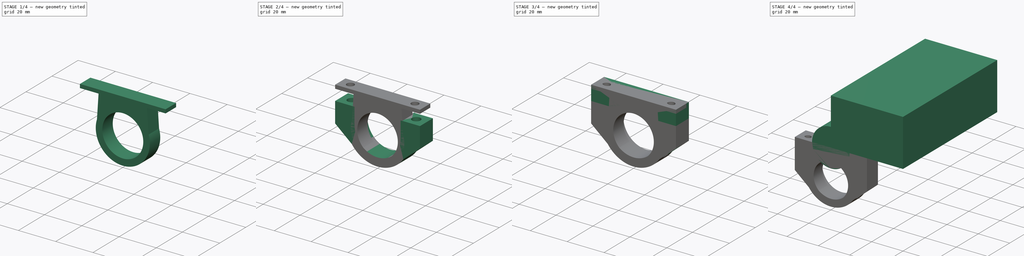
[diagram: build sequence overview — one tinted view per stage of 4, left to right]
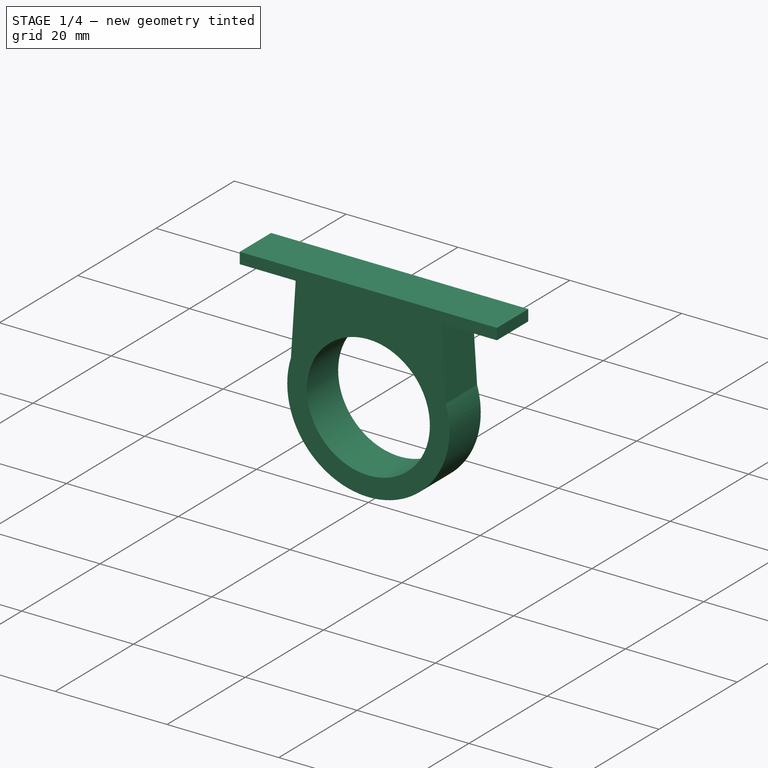
[diagram: stage 1 of 4 — iso view after this stage's code; geometry added in this stage tinted green]
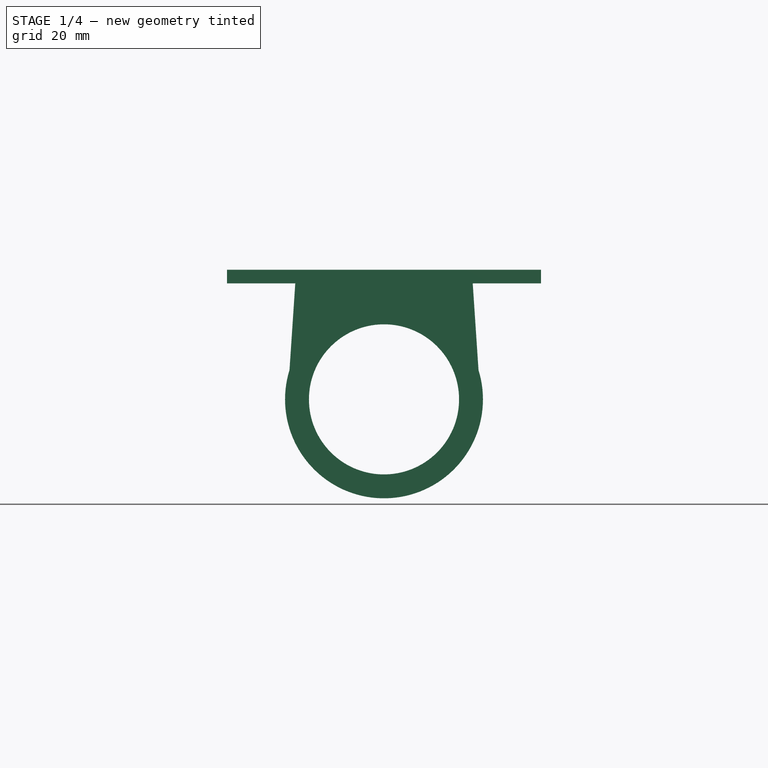
[diagram: stage 1 of 4 — front view after this stage's code; geometry added in this stage tinted green]
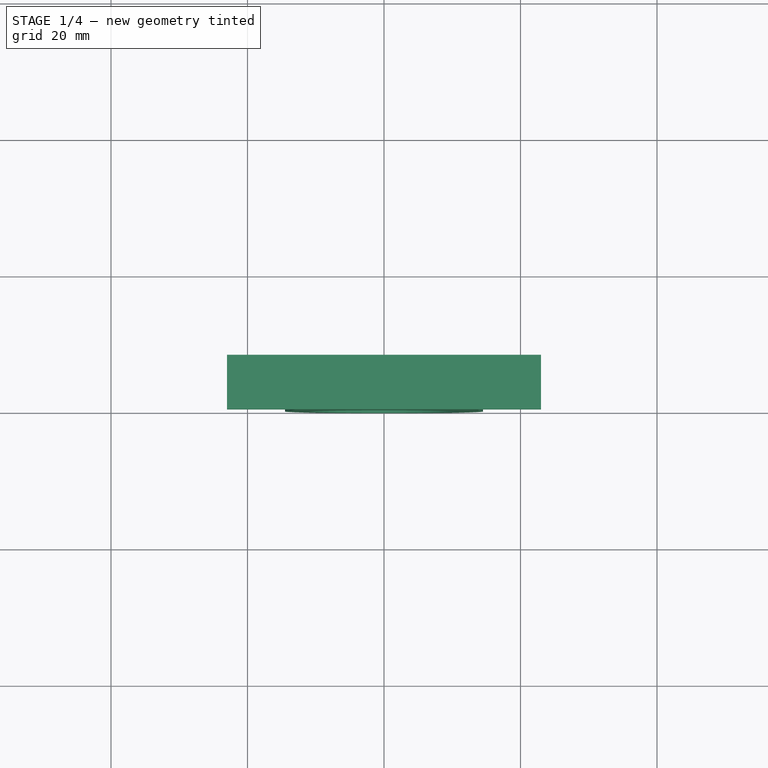
[diagram: stage 1 of 4 — top view after this stage's code; geometry added in this stage tinted green]
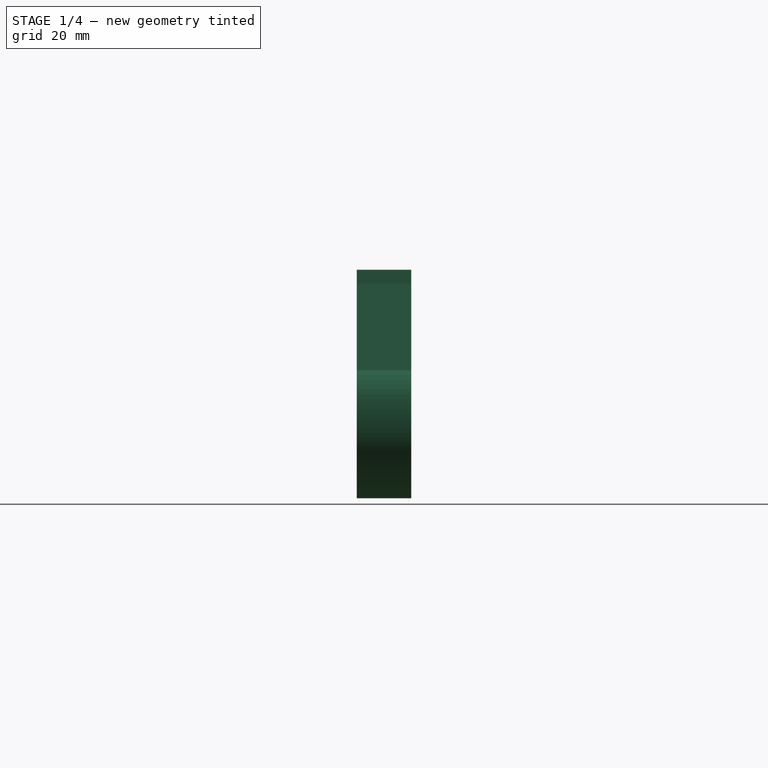
[diagram: stage 1 of 4 — right view after this stage's code; geometry added in this stage tinted green]
FCSTD DOCUMENT  (FreeCAD 0.19R)
Label: pump_mount
License: All rights reserved
LicenseURL: http://en.wikipedia.org/wiki/All_rights_reserved
objects: Sketcher::SketchObject×9, PartDesign::Body×6, PartDesign::Pocket×5, PartDesign::Pad×4, PartDesign::AdditiveCylinder×2, Spreadsheet::Sheet×2, PartDesign::AdditiveBox×1
note: 39 computed .brp shape members not serialized (recipe doc carries the construction recipe); baked Part::Feature solids carry a one-line shape summary decoded from their .brp

FEATURE [PartDesign::Body] Body003  label="mount upper"
  Group = -> [Sketch003,Pad001,Sketch004,Pocket001,Sketch005,Pocket002]
  Origin = -> Origin003
  Tip = -> Pocket002
FEATURE [Spreadsheet::Sheet] Spreadsheet  label="var"
  cells = A1=dist_pump; B1(dist_pump)=17; A2=r_pump; B2(r_pump)=12.5
FEATURE [Sketcher::SketchObject] Sketch006
  MapMode = 5
  Placement = pos=(0,0,0) rot=(1,0,0;1.5708rad)
  Support = -> [XZ_Plane004]
  expr: Constraints[6] = <<var>>.r_pump + 2
  expr: Constraints[20] = <<var>>.r_pump - 1.5
  sketch-geometry (9):
    g0: LineSegment StartX=-23 StartY=0 StartZ=0 EndX=23 EndY=0 EndZ=0
    g1: LineSegment StartX=23 StartY=0 StartZ=0 EndX=23 EndY=-2 EndZ=0
    g2: LineSegment StartX=-23 StartY=-2 StartZ=0 EndX=-23 EndY=0 EndZ=0
    g3: ArcOfCircle CenterX=2e-16 CenterY=-19 CenterZ=0 NormalX=0 NormalY=0 NormalZ=1 AngleXU=0 Radius=14.5 StartAngle=2.84103 EndAngle=6.58374
    g4: Circle CenterX=2e-16 CenterY=-19 CenterZ=0 NormalX=0 NormalY=0 NormalZ=1 AngleXU=0 Radius=11
    g5: LineSegment StartX=23 StartY=-2 StartZ=0 EndX=13 EndY=-2 EndZ=0
    g6: LineSegment StartX=13 StartY=-2 StartZ=0 EndX=13.85 EndY=-14.7072 EndZ=0
    g7: LineSegment StartX=-23 StartY=-2 StartZ=0 EndX=-13 EndY=-2 EndZ=0
    g8: LineSegment StartX=-13 StartY=-2 StartZ=0 EndX=-13.85 EndY=-14.7072 EndZ=0
  constraints (21):
    c: PointOnObject(g0,g-1)
    c: Coincident(g0,g1)
    c: Vertical(g1)
    c: Coincident(g2,g0)
    c: Coincident(g4,g3)
    c: Distance(g3,g0) = 19
    c: Radius(g3) = 14.5
    c: Symmetric(g0,g0,g-2)
    c: Distance(g0) = 46
    c: Symmetric(g1,g2,g-2)
    c: Symmetric(g3,g3,g-2)
    c: Coincident(g1,g5)
    c: Horizontal(g5)
    c: Coincident(g5,g6)
    c: Coincident(g6,g3)
    c: Coincident(g7,g2)
    c: Coincident(g8,g7)
    c: Coincident(g8,g3)
    c: Symmetric(g5,g7,g-2)
    c: Distance(g2) = 2
    c: Radius(g4) = 11
FEATURE [PartDesign::Pad] Pad002
  Length = 8
  Length2 = 100
  Placement = pos=(0,0,0) rot=(1,0,0;1.5708rad)
  Profile = -> Sketch006
  Reversed = true
  Type = 0
FEATURE [PartDesign::Body] Body004  label="tpu_mount"
  Group = -> [Sketch006,Pad002,Sketch007,Pocket003]
  Origin = -> Origin004
  Tip = -> Pocket003
FEATURE [Spreadsheet::Sheet] Spreadsheet001  label="var001"
  cells = A1=dist_pump; B1(dist_pump)=17; A2=r_pump; B2(r_pump)=12.5
FEATURE [Sketcher::SketchObject] Sketch008
  MapMode = 5
  Placement = pos=(0,0,0) rot=(1,0,0;1.5708rad)
  Support = -> [XZ_Plane004]
  expr: Constraints[6] = <<var001>>.r_pump + 2
  sketch-geometry (9):
    g0: LineSegment StartX=-23 StartY=0 StartZ=0 EndX=23 EndY=0 EndZ=0
    g1: LineSegment StartX=23 StartY=0 StartZ=0 EndX=23 EndY=-2 EndZ=0
    g2: LineSegment StartX=-23 StartY=-2 StartZ=0 EndX=-23 EndY=0 EndZ=0
    g3: ArcOfCircle CenterX=-6e-16 CenterY=-19 CenterZ=0 NormalX=0 NormalY=0 NormalZ=1 AngleXU=0 Radius=14.5 StartAngle=2.84103 EndAngle=6.58375
    g4: Circle CenterX=-6e-16 CenterY=-19 CenterZ=0 NormalX=0 NormalY=0 NormalZ=1 AngleXU=0 Radius=12.5
    g5: LineSegment StartX=23 StartY=-2 StartZ=0 EndX=13 EndY=-2 EndZ=0
    g6: LineSegment StartX=13 StartY=-2 StartZ=0 EndX=13.85 EndY=-14.7072 EndZ=0
    g7: LineSegment StartX=-23 StartY=-2 StartZ=0 EndX=-13 EndY=-2 EndZ=0
    g8: LineSegment StartX=-13 StartY=-2 StartZ=0 EndX=-13.85 EndY=-14.7072 EndZ=0
  constraints (21):
    c: PointOnObject(g0,g-1)
    c: Coincident(g0,g1)
    c: Vertical(g1)
    c: Coincident(g2,g0)
    c: Coincident(g4,g3)
    c: Distance(g3,g0) = 19
    c: Radius(g3) = 14.5
    c: Symmetric(g0,g0,g-2)
    c: Distance(g0) = 46
    c: Symmetric(g1,g2,g-2)
    c: Symmetric(g3,g3,g-2)
    c: Coincident(g1,g5)
    c: Horizontal(g5)
    c: Coincident(g5,g6)
    c: Coincident(g6,g3)
    c: Coincident(g7,g2)
    c: Coincident(g8,g7)
    c: Coincident(g8,g3)
    c: Symmetric(g5,g7,g-2)
    c: Distance(g2) = 2
    c: Radius(g4) = 12.5
FEATURE [PartDesign::Pad] Pad003
  Length = 8
  Length2 = 100
  Placement = pos=(0,0,0) rot=(1,0,0;1.5708rad)
  Profile = -> Sketch008
  Reversed = true
  Type = 0
FEATURE [Sketcher::SketchObject] Sketch009
  MapMode = 5
  Support = -> [XY_Plane005]
  sketch-geometry (2):
    g0: Circle CenterX=-17.5 CenterY=4 CenterZ=0 NormalX=0 NormalY=0 NormalZ=1 AngleXU=0 Radius=2
    g1: Circle CenterX=17.5 CenterY=4 CenterZ=0 NormalX=0 NormalY=0 NormalZ=1 AngleXU=0 Radius=2
  constraints (5):
    c: Symmetric(g1,g0,g-2)
    c: Equal(g1,g0)
    c: Radius(g0) = 2
    c: DistanceY(g-1,g1) = 4
    c: Distance(g1,g0) = 35
FEATURE [PartDesign::Pocket] Pocket004
  BaseFeature = -> Pad003
  Length = 5
  Length2 = 100
  Placement = pos=(0,0,0) rot=(1,0,0;1.5708rad)
  Profile = -> Sketch009
  Type = 1
FEATURE [PartDesign::Body] Body005  label="tpu_mount2"
  Group = -> [Sketch008,Pad003,Sketch009,Pocket004]
  Origin = -> Origin005
  Placement = pos=(0,40,0) rot=(0,0,1;0rad)
  Tip = -> Pocket004
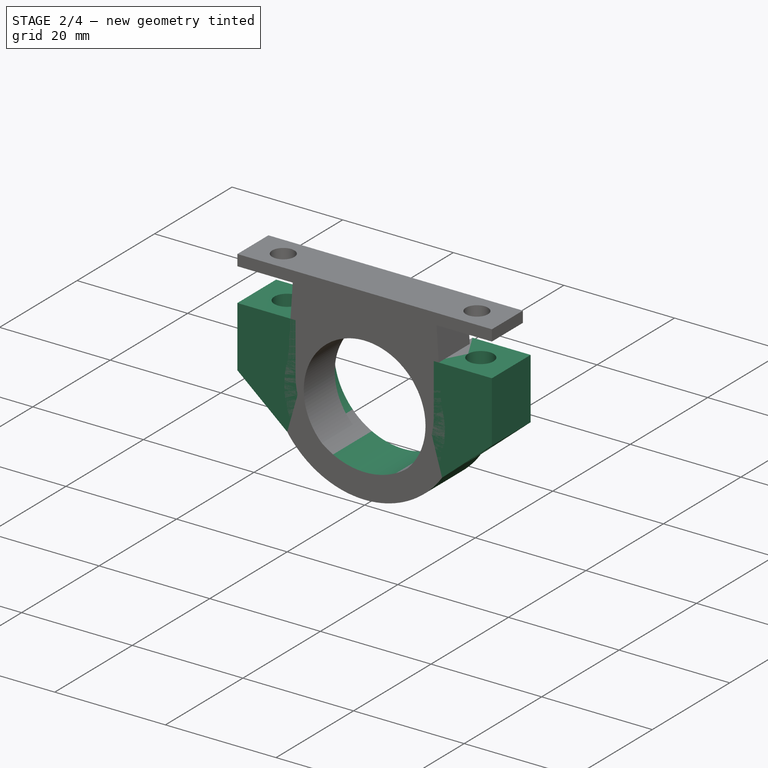
[diagram: stage 2 of 4 — iso view after this stage's code; geometry added in this stage tinted green]
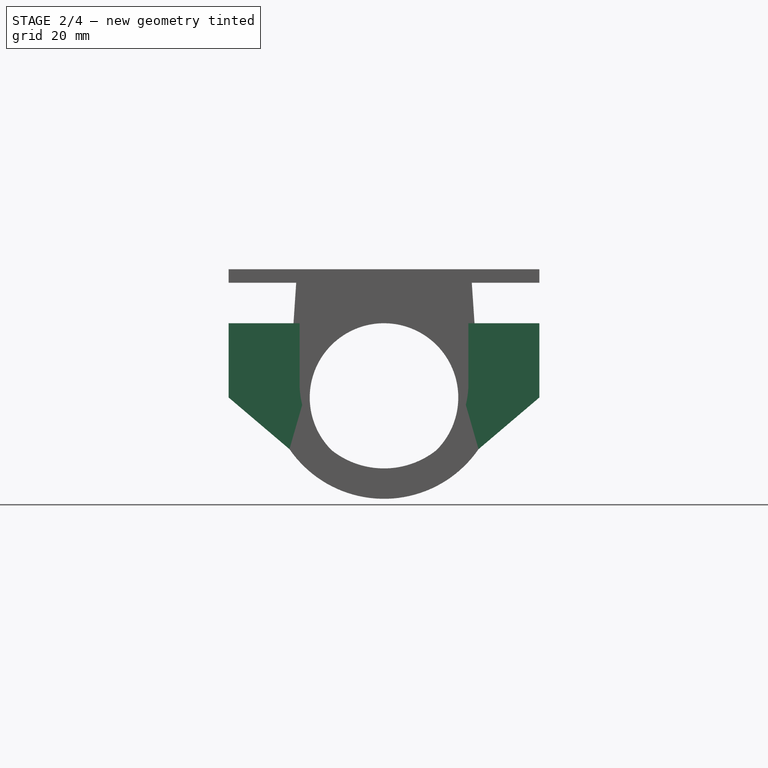
[diagram: stage 2 of 4 — front view after this stage's code; geometry added in this stage tinted green]
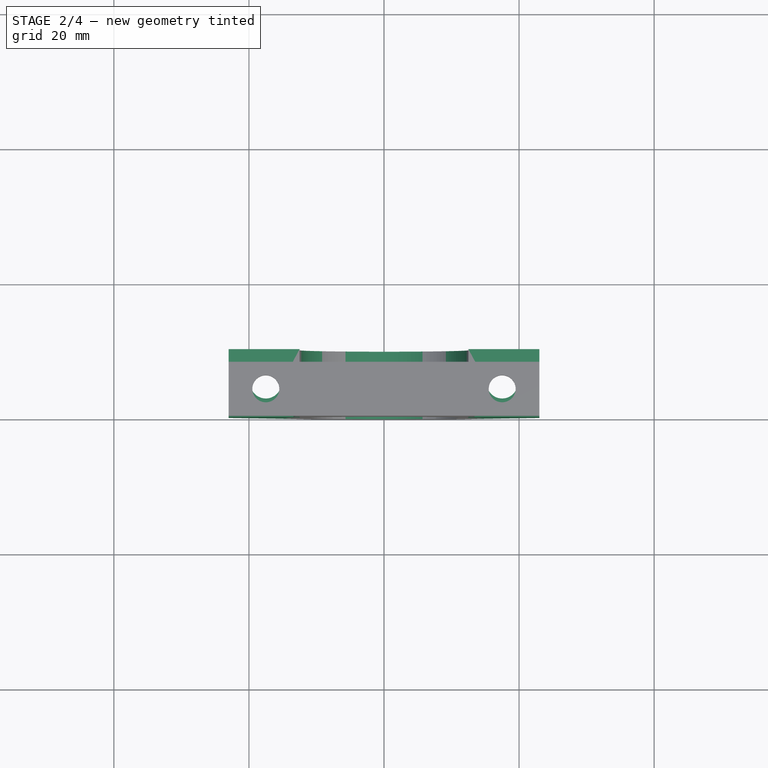
[diagram: stage 2 of 4 — top view after this stage's code; geometry added in this stage tinted green]
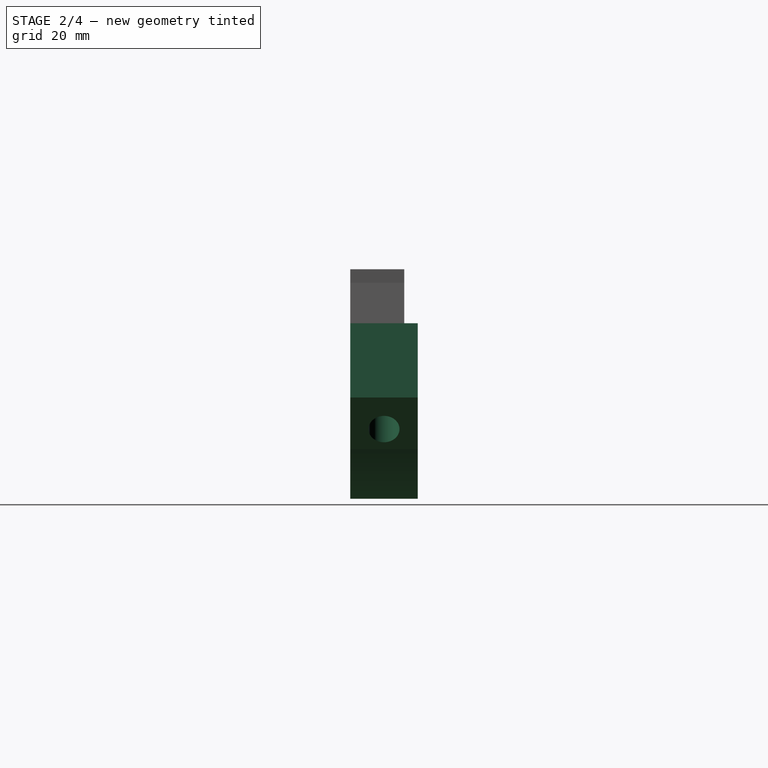
[diagram: stage 2 of 4 — right view after this stage's code; geometry added in this stage tinted green]
FEATURE [PartDesign::Body] Body001  label="mount lower"
  Group = -> [Sketch,Pad,Sketch001,Pocket]
  Origin = -> Origin001
  Tip = -> Pocket
FEATURE [Sketcher::SketchObject] Sketch003
  MapMode = 5
  Placement = pos=(0,0,0) rot=(1,0,0;1.5708rad)
  Support = -> [XZ_Plane003]
  expr: Constraints[15] = -<<var>>.dist_pump
  sketch-geometry (10):
    g0: LineSegment StartX=-23 StartY=-8 StartZ=0 EndX=-12.5 EndY=-8 EndZ=0
    g1: LineSegment StartX=-12.5 StartY=-8 StartZ=0 EndX=-12.5 EndY=-17 EndZ=0
    g2: ArcOfCircle CenterX=3e-16 CenterY=-17 CenterZ=0 NormalX=0 NormalY=0 NormalZ=1 AngleXU=0 Radius=12.5 StartAngle=3.14159 EndAngle=6.28319
    g3: LineSegment StartX=12.5 StartY=-17 StartZ=0 EndX=12.5 EndY=-8 EndZ=0
    g4: LineSegment StartX=12.5 StartY=-8 StartZ=0 EndX=23 EndY=-8 EndZ=0
    g5: LineSegment StartX=23 StartY=-8 StartZ=0 EndX=23 EndY=-19 EndZ=0
    g6: LineSegment StartX=23 StartY=-19 StartZ=0 EndX=14 EndY=-26.6437 EndZ=0
    g7: ArcOfCircle CenterX=3e-16 CenterY=-17 CenterZ=0 NormalX=0 NormalY=0 NormalZ=1 AngleXU=0 Radius=17 StartAngle=3.74478 EndAngle=5.67999
    g8: LineSegment StartX=-23 StartY=-19 StartZ=0 EndX=-23 EndY=-8 EndZ=0
    g9: LineSegment StartX=-14 StartY=-26.6437 StartZ=0 EndX=-23 EndY=-19 EndZ=0
  constraints (25):
    c: Horizontal(g0)
    c: Coincident(g0,g1)
    c: Vertical(g1)
    c: Tangent(g1,g2) = -1.5708
    c: Tangent(g2,g3) = -1.5708
    c: Coincident(g4,g5)
    c: Vertical(g5)
    c: Coincident(g8,g0)
    c: Coincident(g9,g8)
    c: Symmetric(g0,g4,g-2)
    c: Symmetric(g0,g4,g-2)
    c: Distance(g0,g4) = 46
    c: Coincident(g3,g4)
    c: Distance(g0,g3) = 25
    c: Coincident(g2,g7)
    c: DistanceY(g-1,g2) = -17
    c: DistanceY(g-1,g0) = -8
    c: Distance(g8) = 11
    c: Coincident(g5,g6)
    c: Coincident(g7,g9)
    c: Coincident(g6,g7)
    c: Symmetric(g5,g8,g-2)
    c: Radius(g7) = 17
    c: Symmetric(g6,g7,g-2)
    c: Distance(g7,g6) = 28
FEATURE [PartDesign::Pad] Pad001
  Length = 10
  Length2 = 100
  Placement = pos=(0,0,0) rot=(1,0,0;1.5708rad)
  Profile = -> Sketch003
  Reversed = true
  Type = 0
FEATURE [Sketcher::SketchObject] Sketch004
  MapMode = 5
  Support = -> [XY_Plane003]
  sketch-geometry (2):
    g0: Circle CenterX=-17.5 CenterY=5 CenterZ=0 NormalX=0 NormalY=0 NormalZ=1 AngleXU=0 Radius=2.3
    g1: Circle CenterX=17.5 CenterY=5 CenterZ=0 NormalX=0 NormalY=0 NormalZ=1 AngleXU=0 Radius=2.3
  constraints (5):
    c: Symmetric(g0,g1,g-2)
    c: Distance(g0,g1) = 35
    c: DistanceY(g-1,g0) = 5
    c: Radius(g1) = 2.3
    c: Equal(g1,g0)
FEATURE [PartDesign::Pocket] Pocket001
  BaseFeature = -> Pad001
  Length = 5
  Length2 = 100
  Placement = pos=(0,0,0) rot=(1,0,0;1.5708rad)
  Profile = -> Sketch004
  Type = 1
FEATURE [Sketcher::SketchObject] Sketch007
  MapMode = 5
  Support = -> [XY_Plane004]
  sketch-geometry (2):
    g0: Circle CenterX=-17.5 CenterY=4 CenterZ=0 NormalX=0 NormalY=0 NormalZ=1 AngleXU=0 Radius=2
    g1: Circle CenterX=17.5 CenterY=4 CenterZ=0 NormalX=0 NormalY=0 NormalZ=1 AngleXU=0 Radius=2
  constraints (5):
    c: Symmetric(g1,g0,g-2)
    c: Equal(g1,g0)
    c: Radius(g0) = 2
    c: DistanceY(g-1,g1) = 4
    c: Distance(g1,g0) = 35
FEATURE [PartDesign::Pocket] Pocket003
  BaseFeature = -> Pad002
  Length = 5
  Length2 = 100
  Placement = pos=(0,0,0) rot=(1,0,0;1.5708rad)
  Profile = -> Sketch007
  Type = 1
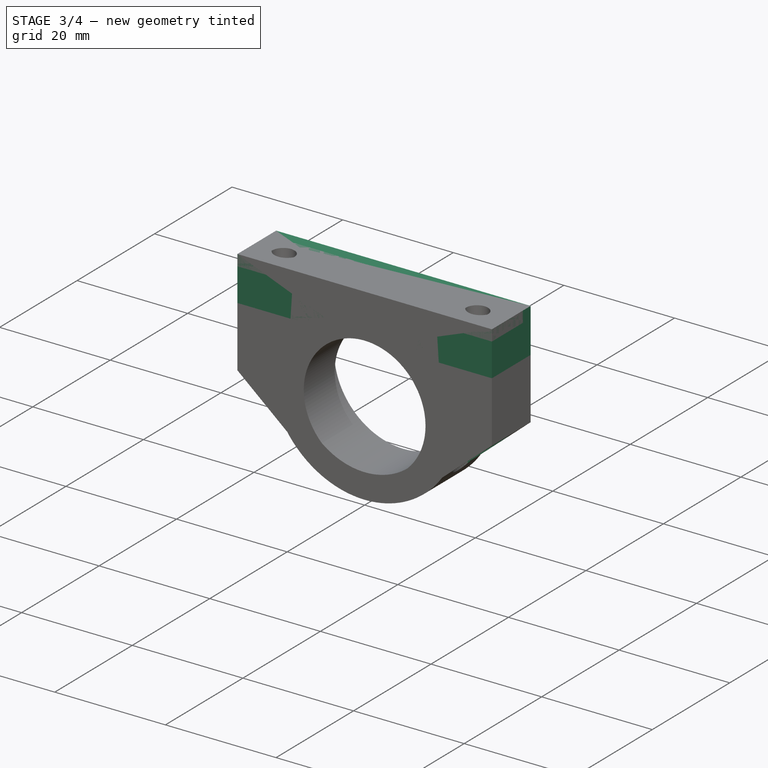
[diagram: stage 3 of 4 — iso view after this stage's code; geometry added in this stage tinted green]
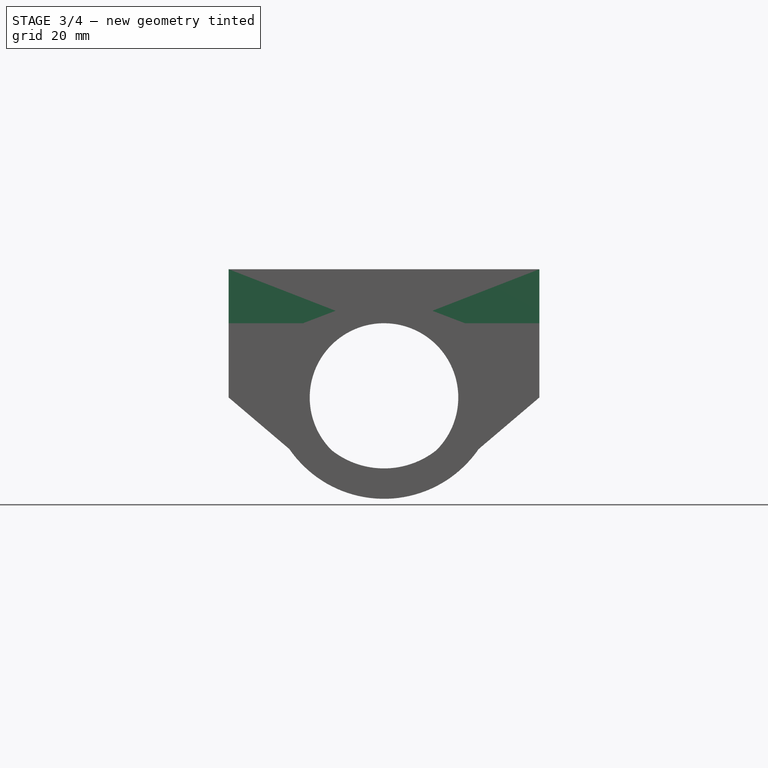
[diagram: stage 3 of 4 — front view after this stage's code; geometry added in this stage tinted green]
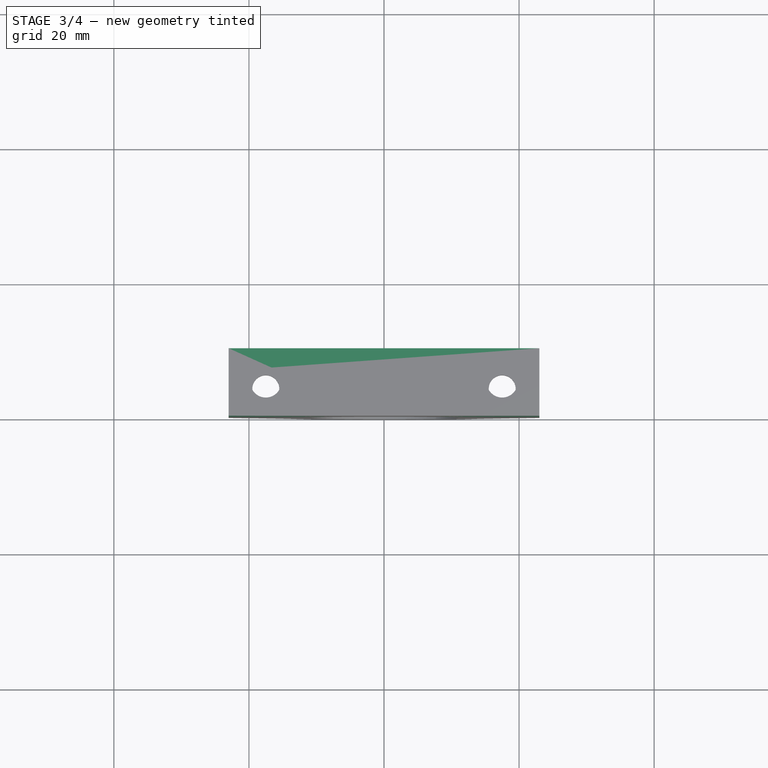
[diagram: stage 3 of 4 — top view after this stage's code; geometry added in this stage tinted green]
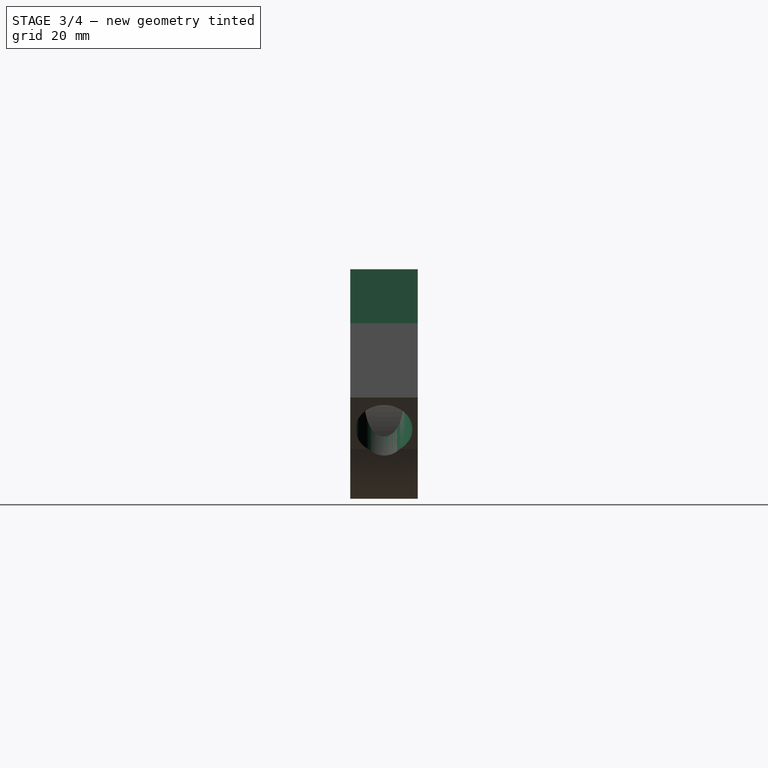
[diagram: stage 3 of 4 — right view after this stage's code; geometry added in this stage tinted green]
FEATURE [PartDesign::Body] Body002  label="ppump"
  Group = -> [Box001]
  Origin = -> Origin002
  Placement = pos=(-23,0,0) rot=(0,0,1;0rad)
  Tip = -> Box001
FEATURE [Sketcher::SketchObject] Sketch
  MapMode = 5
  Placement = pos=(0,0,0) rot=(1,0,0;1.5708rad)
  Support = -> [XZ_Plane001]
  expr: Constraints[6] = -<<var>>.dist_pump
  sketch-geometry (10):
    g0: LineSegment StartX=-23 StartY=0 StartZ=0 EndX=23 EndY=0 EndZ=0
    g1: LineSegment StartX=23 StartY=0 StartZ=0 EndX=23 EndY=-8 EndZ=0
    g2: LineSegment StartX=12 StartY=-8.2 StartZ=0 EndX=9.5687 EndY=-8.2 EndZ=0
    g3: LineSegment StartX=-9.5687 StartY=-8.2 StartZ=0 EndX=-12 EndY=-8.2 EndZ=0
    g4: LineSegment StartX=-23 StartY=-8 StartZ=0 EndX=-23 EndY=0 EndZ=0
    g5: ArcOfCircle CenterX=0 CenterY=-17 CenterZ=0 NormalX=0 NormalY=0 NormalZ=1 AngleXU=0 Radius=13 StartAngle=0.743574 EndAngle=2.39802
    g6: LineSegment StartX=23 StartY=-8 StartZ=0 EndX=12 EndY=-8 EndZ=0
    g7: LineSegment StartX=12 StartY=-8 StartZ=0 EndX=12 EndY=-8.2 EndZ=0
    g8: LineSegment StartX=-12 StartY=-8.2 StartZ=0 EndX=-12 EndY=-8 EndZ=0
    g9: LineSegment StartX=-12 StartY=-8 StartZ=0 EndX=-23 EndY=-8 EndZ=0
  constraints (27):
    c: Coincident(g0,g1)
    c: Vertical(g1)
    c: Horizontal(g2)
    c: Coincident(g4,g0)
    c: Coincident(g5,g2)
    c: Coincident(g5,g3)
    c: DistanceY(g-1,g5) = -17
    c: Radius(g5) = 13
    c: PointOnObject(g0,g-1)
    c: Symmetric(g2,g3,g-2)
    c: Distance(g0) = 46
    c: Symmetric(g0,g0,g-2)
    c: Symmetric(g3,g2,g-2)
    c: Symmetric(g4,g1,g-2)
    c: Coincident(g1,g6)
    c: Horizontal(g6)
    c: Coincident(g6,g7)
    c: Coincident(g7,g2)
    c: Vertical(g7)
    c: Coincident(g3,g8)
    c: Vertical(g8)
    c: Coincident(g8,g9)
    c: Coincident(g9,g4)
    c: Horizontal(g9)
    c: DistanceX(g-2,g6) = 12
    c: DistanceY(g-1,g4) = -8
    c: Distance(g8) = 0.2
FEATURE [PartDesign::Pad] Pad
  Length = 10
  Length2 = 100
  Placement = pos=(0,0,0) rot=(1,0,0;1.5708rad)
  Profile = -> Sketch
  Reversed = true
  Type = 0
FEATURE [Sketcher::SketchObject] Sketch001
  MapMode = 5
  Support = -> [XY_Plane001]
  sketch-geometry (2):
    g0: Circle CenterX=17.5 CenterY=5 CenterZ=0 NormalX=0 NormalY=0 NormalZ=1 AngleXU=0 Radius=2.3
    g1: Circle CenterX=-17.5 CenterY=5 CenterZ=0 NormalX=0 NormalY=0 NormalZ=1 AngleXU=0 Radius=2.3
  constraints (5):
    c: Symmetric(g1,g0,g-2)
    c: Radius(g1) = 2.3
    c: Equal(g1,g0)
    c: DistanceY(g-1,g1) = 5
    c: Distance(g0,g1) = 35
FEATURE [PartDesign::Pocket] Pocket
  BaseFeature = -> Pad
  Length = 5
  Length2 = 100
  Placement = pos=(0,0,0) rot=(1,0,0;1.5708rad)
  Profile = -> Sketch001
  Type = 1
FEATURE [Sketcher::SketchObject] Sketch005
  AttachmentOffset = pos=(0,0,-19) rot=(0,0,1;0rad)
  MapMode = 5
  Placement = pos=(0,0,-19) rot=(0,0,1;0rad)
  Support = -> [XY_Plane003]
  sketch-geometry (2):
    g0: Circle CenterX=-17.5 CenterY=5 CenterZ=0 NormalX=0 NormalY=0 NormalZ=1 AngleXU=0 Radius=4.2
    g1: Circle CenterX=17.5 CenterY=5 CenterZ=0 NormalX=0 NormalY=0 NormalZ=1 AngleXU=0 Radius=4.2
  constraints (4):
    c: Symmetric(g1,g0,g-2)
    c: Distance(g1,g0) = 35
    c: Radius(g0) = 4.2
    c: Equal(g0,g1)
FEATURE [PartDesign::Pocket] Pocket002
  BaseFeature = -> Pocket001
  Length = 0
  Length2 = 90
  Offset = -3
  Placement = pos=(0,0,0) rot=(1,0,0;1.5708rad)
  Profile = -> Sketch005
  Type = 1
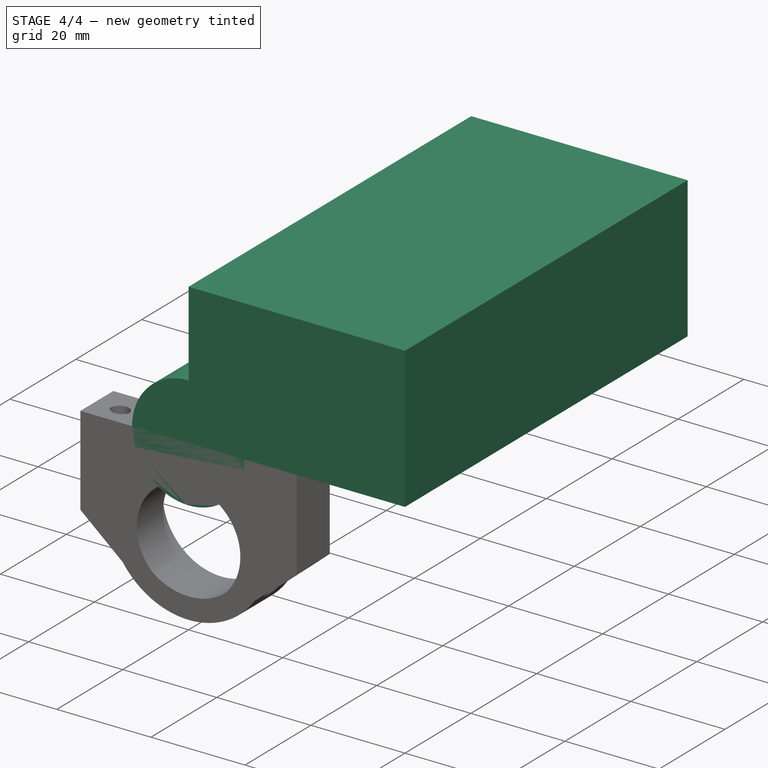
[diagram: stage 4 of 4 — iso view after this stage's code; geometry added in this stage tinted green]
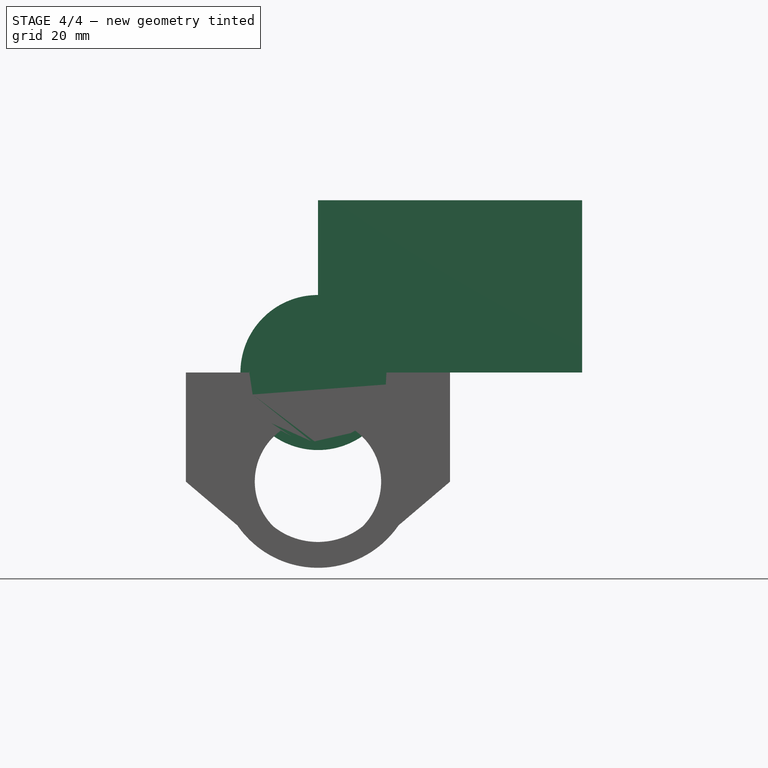
[diagram: stage 4 of 4 — front view after this stage's code; geometry added in this stage tinted green]
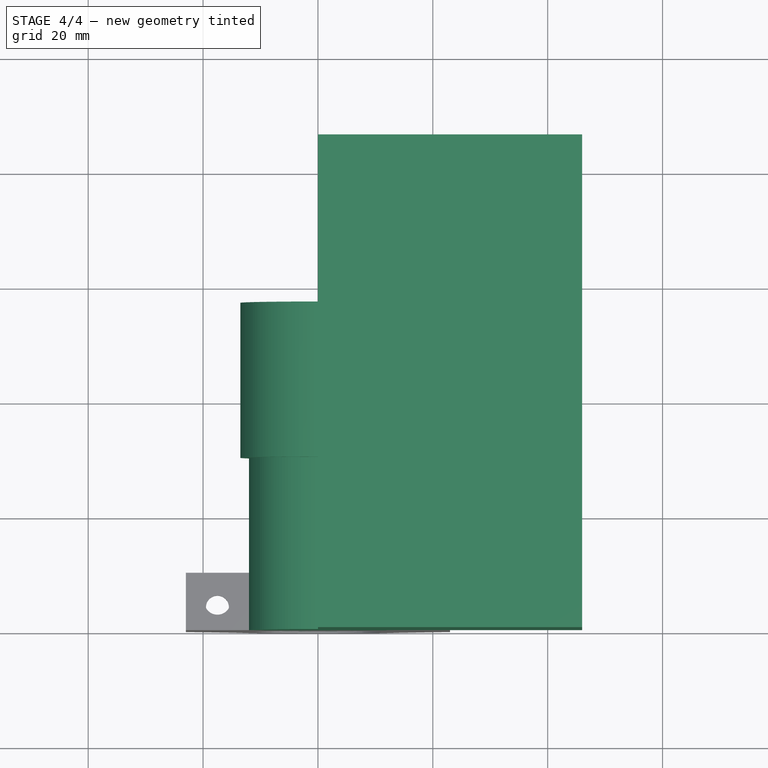
[diagram: stage 4 of 4 — top view after this stage's code; geometry added in this stage tinted green]
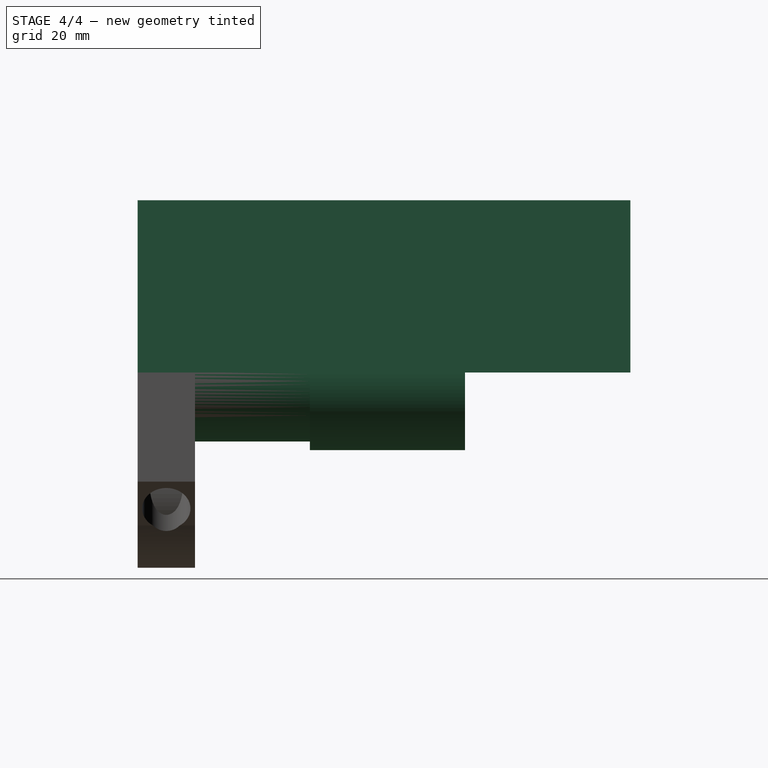
[diagram: stage 4 of 4 — right view after this stage's code; geometry added in this stage tinted green]
FEATURE [PartDesign::AdditiveCylinder] Cylinder  label="motor"
  Angle = 360
  AttacherType = Attacher::AttachEngine3D
  Height = 30
  MapMode = 2
  Placement = pos=(0,0,0) rot=(0.57735,0.57735,0.57735;4.18879rad)
  Radius = 12
FEATURE [PartDesign::AdditiveCylinder] Cylinder001  label="plastic"
  Angle = 360
  AttacherType = Attacher::AttachEngine3D
  BaseFeature = -> Cylinder
  Height = 27
  MapMode = 5
  Placement = pos=(1.33e-14,30,-1.17e-14) rot=(0.57735,0.57735,0.57735;4.18879rad)
  Radius = 13.5
  Support = -> [Cylinder]
FEATURE [PartDesign::Body] Body  label="pump"
  Group = -> [Cylinder,Cylinder001]
  Origin = -> Origin
  Placement = pos=(0,0,-17) rot=(0,0,1;0rad)
  Tip = -> Cylinder001
  expr: .Placement.Base.z = -<<var>>.dist_pump
FEATURE [PartDesign::AdditiveBox] Box001
  AttacherType = Attacher::AttachEngine3D
  Height = 30
  Length = 46
  Width = 85.8
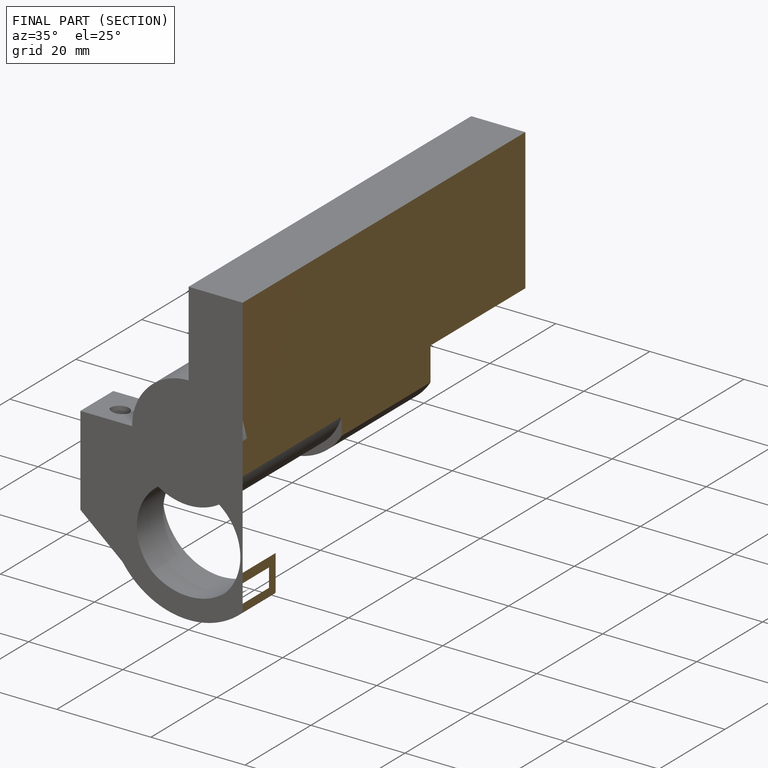
[diagram: finished part — half-section view (interior)]
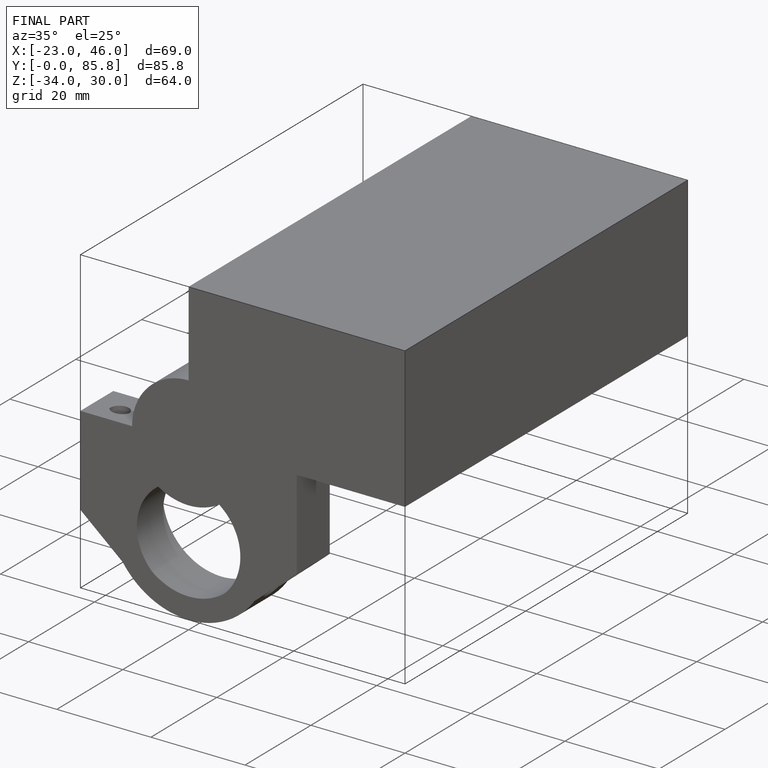
[diagram: finished part — iso view with bounding-box wireframe]
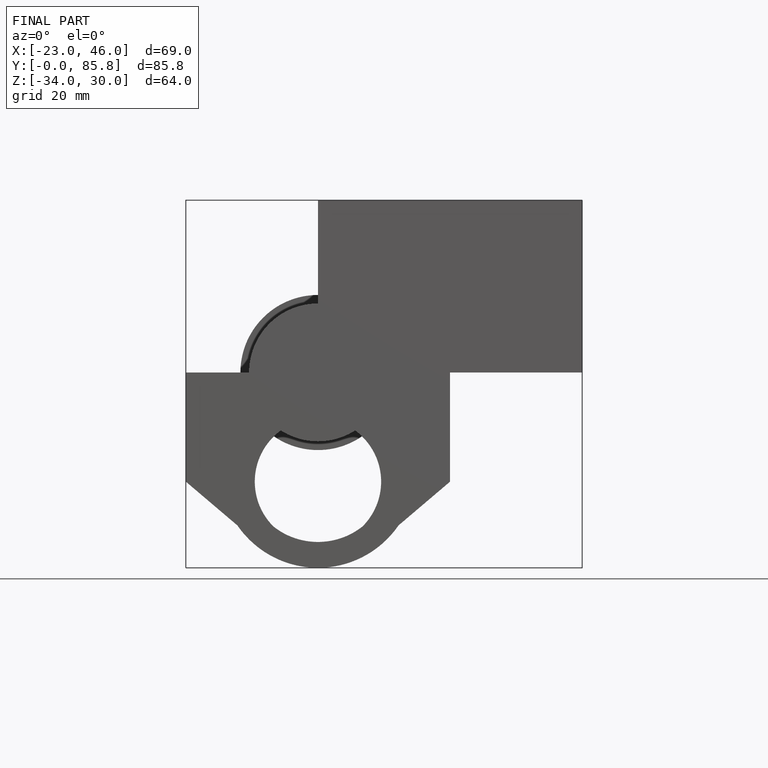
[diagram: finished part — front view with bounding-box wireframe]
